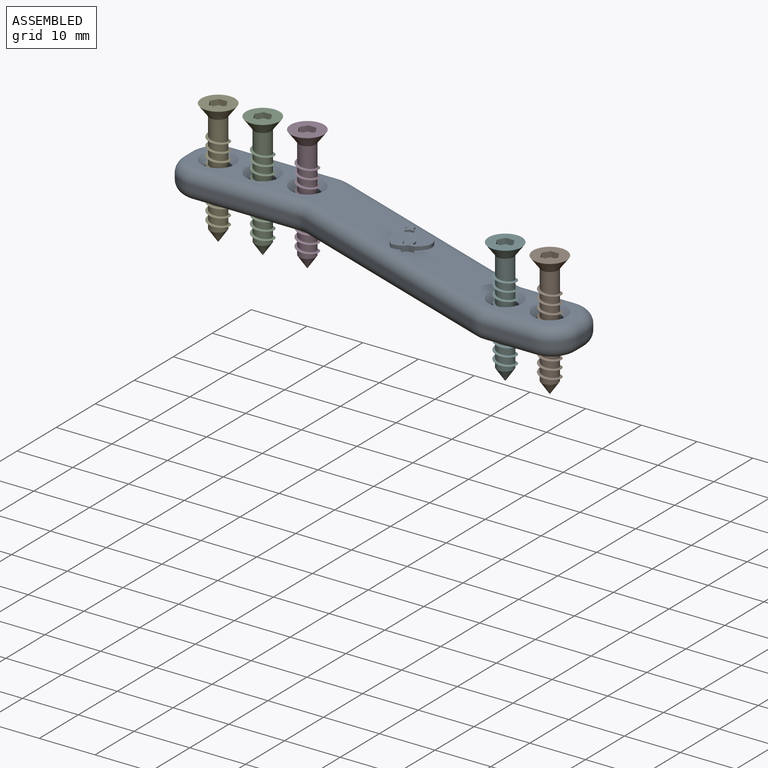
[diagram: assembled view]
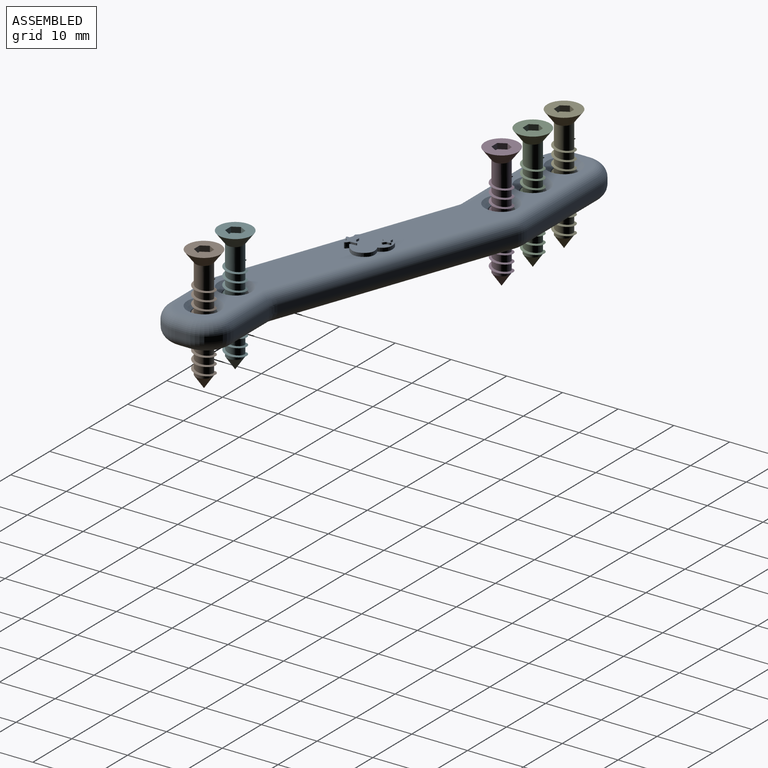
[diagram: assembled view, second angle]
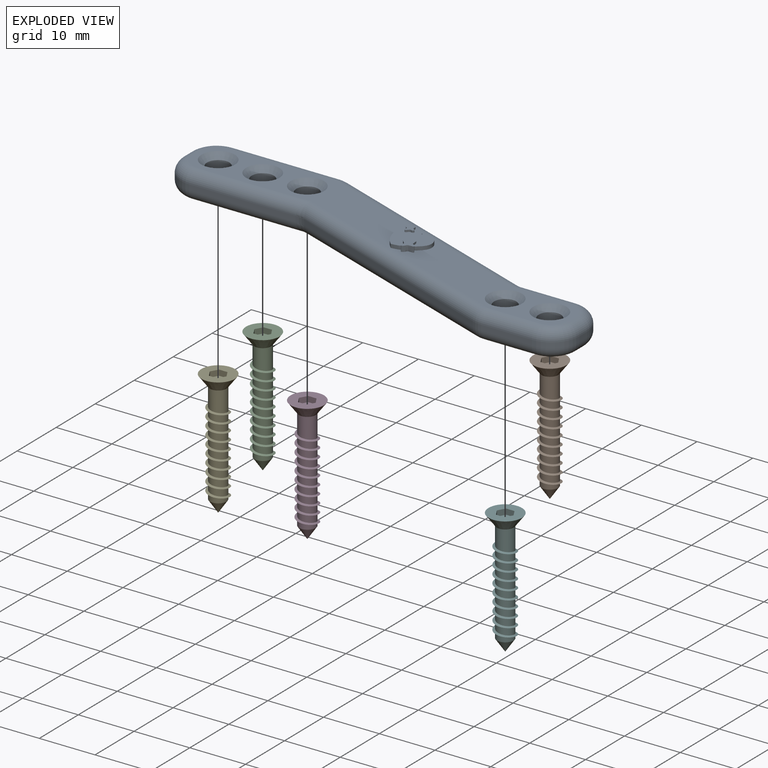
[diagram: exploded view]
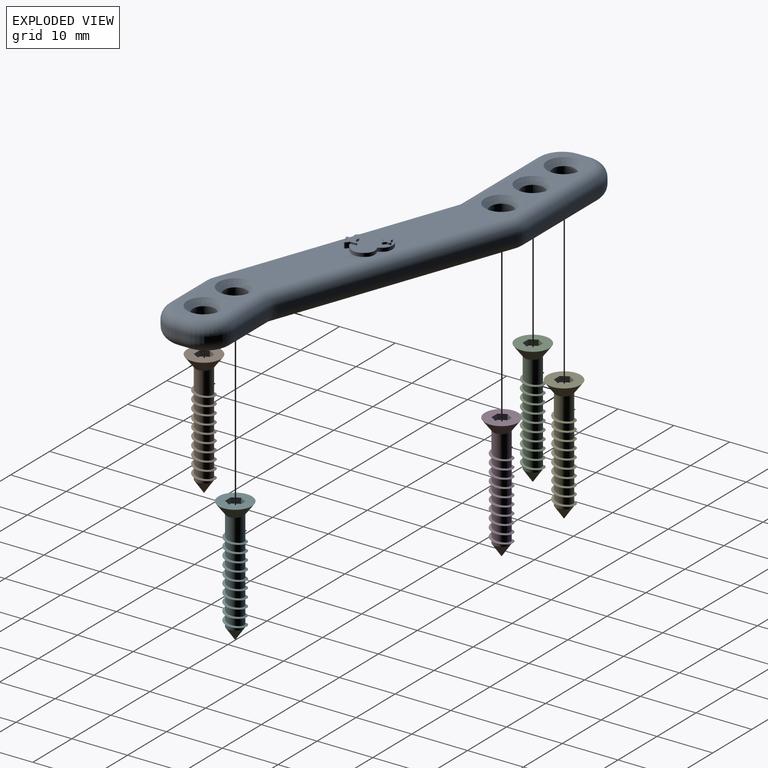
[diagram: exploded view, second angle]
ASSEMBLY  parts=6 mates=5
PART A: 68 faces, bbox 83.1x28.2x6 mm
  f0: plane 78.29x23.39mm, normal (0,0,1), area 432.4mm2, adj f23,f24,f25,f26,f27,f28,f29,f30
  f1: plane 78.29x23.39mm, normal (0,0,-1), area 544.8mm2, adj f10,f11,f12,f13,f14,f15,f16,f17
  f2: plane 2x1mm, normal (-1,0,0), area 2mm2, adj f16,f24,f41,f47
  f3: plane 19.12x1mm, normal (0,-1,0), area 19.1mm2, adj f18,f26,f41,f53
  f4: plane 40.63x14.79mm, normal (-0.34,-0.94,0), area 43.2mm2, adj f20,f28,f35,f53
  f5: plane 9.12x1mm, normal (0,-1,0), area 9.1mm2, adj f22,f30,f32,f35
  f6: plane 2x1mm, normal (1,0,0), area 2mm2, adj f21,f29,f32,f38
  f7: plane 9.12x1mm, normal (0,1,0), area 9.1mm2, adj f19,f27,f38,f50
  f8: plane 40.63x14.79mm, normal (0.34,0.94,0), area 43.2mm2, adj f17,f25,f44,f50
  f9: plane 19.12x1mm, normal (0,1,0), area 19.1mm2, adj f15,f23,f44,f47
  f10: cylinder r=2mm len=4mm, axis (0,0,1), area 50.3mm2, adj f1,f58
  f11: cylinder r=2mm len=4mm, axis (0,0,1), area 50.3mm2, adj f1,f57
  f12: cylinder r=2mm len=4mm, axis (0,0,1), area 50.3mm2, adj f1,f56
  f13: cylinder r=2mm len=4mm, axis (0,0,1), area 50.3mm2, adj f1,f55
  f14: cylinder r=2mm len=4mm, axis (0,0,1), area 50.3mm2, adj f1,f59
  f15: cylinder r=2mm len=19.12mm, axis (-1,0,0), area 60.1mm2, adj f1,f9,f43,f46
  f16: cylinder r=2mm len=2mm, axis (0,-1,0), area 6.3mm2, adj f1,f2,f40,f46
  f17: cylinder r=2mm len=42.47mm, axis (-0.94,0.34,0), area 137.2mm2, adj f1,f8,f43,f51
  f18: cylinder r=2mm len=20.35mm, axis (1,0,0), area 61.5mm2, adj f1,f3,f40,f54
  f19: cylinder r=2mm len=10.35mm, axis (-1,0,0), area 30.1mm2, adj f1,f7,f37,f51
  f20: cylinder r=2mm len=42.47mm, axis (0.94,-0.34,0), area 137.2mm2, adj f1,f4,f34,f54
  f21: cylinder r=2mm len=2mm, axis (0,1,0), area 6.3mm2, adj f1,f6,f31,f37
  f22: cylinder r=2mm len=9.12mm, axis (1,0,0), area 28.6mm2, adj f1,f5,f31,f34
  f23: cylinder r=2mm len=19.12mm, axis (1,0,0), area 60.1mm2, adj f0,f9,f45,f48
  f24: cylinder r=2mm len=2mm, axis (0,1,0), area 6.3mm2, adj f0,f2,f42,f48
  f25: cylinder r=2mm len=42.47mm, axis (0.94,-0.34,0), area 137.2mm2, adj f0,f8,f45,f49
  f26: cylinder r=2mm len=20.35mm, axis (-1,0,0), area 61.5mm2, adj f0,f3,f42,f52
  f27: cylinder r=2mm len=10.35mm, axis (1,0,0), area 30.1mm2, adj f0,f7,f39,f49
  f28: cylinder r=2mm len=42.47mm, axis (-0.94,0.34,0), area 137.2mm2, adj f0,f4,f36,f52
  f29: cylinder r=2mm len=2mm, axis (0,-1,0), area 6.3mm2, adj f0,f6,f33,f39
  f30: cylinder r=2mm len=9.12mm, axis (-1,0,0), area 28.6mm2, adj f0,f5,f33,f36
  f31: torus R=3mm, axis (0,0,1), area 21.1mm2, adj f1,f21,f22,f32
  f32: cylinder r=5mm len=5mm, axis (0,0,1), area 7.9mm2, adj f5,f6,f31,f33
  f33: torus R=3mm, axis (0,0,1), area 21.1mm2, adj f0,f29,f30,f32
  f34: torus R=3mm, axis (0,0,1), area 4.7mm2, adj f1,f20,f22,f35
  f35: cylinder r=5mm len=1.71mm, axis (0,0,-1), area 1.7mm2, adj f4,f5,f34,f36
  f36: torus R=3mm, axis (0,0,1), area 4.7mm2, adj f0,f28,f30,f35
  f37: torus R=3mm, axis (0,0,1), area 21.1mm2, adj f1,f19,f21,f38
  f38: cylinder r=5mm len=5mm, axis (0,0,-1), area 7.9mm2, adj f6,f7,f37,f39
  f39: torus R=3mm, axis (0,0,1), area 21.1mm2, adj f0,f27,f29,f38
  f40: torus R=3mm, axis (0,0,1), area 21.1mm2, adj f1,f16,f18,f41
  f41: cylinder r=5mm len=5mm, axis (0,0,-1), area 7.9mm2, adj f2,f3,f40,f42
  f42: torus R=3mm, axis (0,0,1), area 21.1mm2, adj f0,f24,f26,f41
  f43: torus R=3mm, axis (0,0,1), area 4.7mm2, adj f1,f15,f17,f44
  f44: cylinder r=5mm len=1.71mm, axis (0,0,-1), area 1.7mm2, adj f8,f9,f43,f45
  f45: torus R=3mm, axis (0,0,1), area 4.7mm2, adj f0,f23,f25,f44
  f46: torus R=3mm, axis (0,0,1), area 21.1mm2, adj f1,f15,f16,f47
  f47: cylinder r=5mm len=5mm, axis (0,0,1), area 7.9mm2, adj f2,f9,f46,f48
  f48: torus R=3mm, axis (0,0,1), area 21.1mm2, adj f0,f23,f24,f47
  f49: bspline ~2.3x2.26mm, area 3.5mm2, adj f25,f27,f50
  f50: cylinder r=5mm len=1.71mm, axis (0,0,1), area 1.7mm2, adj f7,f8,f49,f51
  f51: bspline ~2.3x2.26mm, area 3.5mm2, adj f17,f19,f50
  f52: bspline ~2.3x2.26mm, area 3.5mm2, adj f26,f28,f53
  f53: cylinder r=5mm len=1.71mm, axis (0,0,1), area 1.7mm2, adj f3,f4,f52,f54
  f54: bspline ~2.3x2.26mm, area 3.5mm2, adj f18,f20,f53
  f55: cone r=2mm half-angle=45deg, axis (0,0,1), area 22.2mm2, adj f0,f13
  f56: cone r=2mm half-angle=45deg, axis (0,0,1), area 22.2mm2, adj f0,f12
  f57: cone r=2mm half-angle=45deg, axis (0,0,1), area 22.2mm2, adj f0,f11
  f58: cone r=2mm half-angle=45deg, axis (0,0,1), area 22.2mm2, adj f0,f10
  f59: cone r=2mm half-angle=45deg, axis (0,0,1), area 22.2mm2, adj f0,f14
  f60: extruded ~2.57x2.53mm, area 5.3mm2, adj f0,f61,f62,f64,f65
  f61: plane 2.69x2.67mm, normal (0,0,1), area 2.9mm2, adj f60
  f62: extruded ~4.43x3.06mm, area 4.8mm2, adj f0,f60,f63,f65
  f63: extruded ~6.65x3.88mm, area 7.1mm2, adj f0,f62,f64,f65
  f64: extruded ~1.9x0.65mm, area 1.3mm2, adj f0,f60,f63,f65
  f65: plane 7.05x6.7mm, normal (0,0,1), area 29.5mm2, adj f60,f62,f63,f64,f67
  f66: plane 1.87x1.87mm, normal (0,0,1), area 1.6mm2, adj f67
  f67: extruded ~1.83x1.82mm, area 2.1mm2, adj f65,f66
PART B: 25 faces, bbox 6x22.5x6 mm
  f0: plane 6x6mm, normal (0,1,0), area 22.4mm2, adj f12,f18,f19,f20,f21,f22,f23
  f1: cylinder r=1.5mm len=4.5mm, axis (0,1,0), area 35.3mm2, adj f2,f12,f13,f15
  f2: cylinder r=1.5mm len=3mm, axis (0,1,0), area 11.3mm2, adj f1,f3,f15,f16
  f3: cylinder r=1.5mm len=3mm, axis (0,1,0), area 11.3mm2, adj f2,f4,f15,f16
  f4: cylinder r=1.5mm len=3mm, axis (0,1,0), area 11.3mm2, adj f3,f5,f15,f16
  f5: cylinder r=1.5mm len=3mm, axis (0,1,0), area 11.3mm2, adj f4,f6,f15,f16
  f6: cylinder r=1.5mm len=3mm, axis (0,1,0), area 11.3mm2, adj f5,f7,f15,f16
  f7: cylinder r=1.5mm len=3mm, axis (0,1,0), area 11.3mm2, adj f6,f8,f15,f16
  f8: cylinder r=1.5mm len=3mm, axis (0,1,0), area 11.3mm2, adj f7,f9,f15,f16
  f9: cylinder r=1.5mm len=3mm, axis (0,1,0), area 11.3mm2, adj f8,f10,f15,f16
  f10: cylinder r=1.5mm len=3mm, axis (0,1,0), area 11.3mm2, adj f9,f11,f15,f16
  f11: cylinder r=1.5mm len=3mm, axis (0,1,0), area 7.1mm2, adj f10,f14,f16,f17
  f12: cone r=1.5mm half-angle=36.9deg, axis (0,1,0), area 35.3mm2, adj f0,f1
  f13: plane 0.4x0.3mm, normal (-1,0,0), area 0.1mm2, adj f1,f15,f16
  f14: plane 0.4x0.3mm, normal (1,0,0), area 0.1mm2, adj f11,f15,f16
  f15: bspline ~15.15x4.39mm, area 45.9mm2, adj f1,f2,f3,f4,f5,f6,f7,f8
  f16: bspline ~15.15x4.39mm, area 46mm2, adj f2,f3,f4,f5,f6,f7,f8,f9
  f17: cone r=1.5mm half-angle=34.3deg, axis (0,1,0), area 12.5mm2, adj f11
  f18: plane 1.5x1mm, normal (0,0,-1), area 1.5mm2, adj f0,f19,f23,f24
  f19: plane 1.3x1mm, normal (-0.87,0,-0.5), area 1.5mm2, adj f0,f18,f20,f24
  f20: plane 1.3x1mm, normal (-0.87,0,0.5), area 1.5mm2, adj f0,f19,f21,f24
  f21: plane 1.5x1mm, normal (0,0,1), area 1.5mm2, adj f0,f20,f22,f24
  f22: plane 1.3x1mm, normal (0.87,0,0.5), area 1.5mm2, adj f0,f21,f23,f24
  f23: plane 1.3x1mm, normal (0.87,0,-0.5), area 1.5mm2, adj f0,f18,f22,f24
  f24: plane 3x2.6mm, normal (0,1,0), area 5.8mm2, adj f18,f19,f20,f21,f22,f23
PART C: same geometry as B
PART D: same geometry as B
PART E: same geometry as B
PART F: same geometry as B
PLACE A t=(-37.83,1.02,-6.88)mm fixed
PLACE B rot(axis=(0.38,-0.65,-0.65),138.6deg) t=(38.46,-8.37,7.27)mm
PLACE C rot(axis=(0.38,-0.65,-0.65),138.6deg) t=(-23.83,7.02,7.27)mm
PLACE D rot(axis=(0.38,-0.65,-0.65),138.6deg) t=(-15.83,7.02,7.27)mm
PLACE E rot(axis=(0.38,-0.65,-0.65),138.6deg) t=(-31.83,7.02,7.27)mm
PLACE F rot(axis=(0.38,-0.65,-0.65),138.6deg) t=(30.46,-8.37,7.27)mm
MATE cylindrical F.f1 <-> A.f13  axis (0,0,1) through (30.46,-8.37,-3.88)mm
MATE cylindrical C.f1 <-> A.f11  axis (0,0,1) through (-23.83,7.02,-3.88)mm
MATE cylindrical E.f1 <-> A.f14  axis (0,0,1) through (-31.83,7.02,-3.88)mm
MATE cylindrical D.f1 <-> A.f12  axis (0,0,1) through (-15.83,7.02,-3.88)mm
MATE cylindrical B.f1 <-> A.f10  axis (0,0,1) through (38.46,-8.37,-3.88)mm
